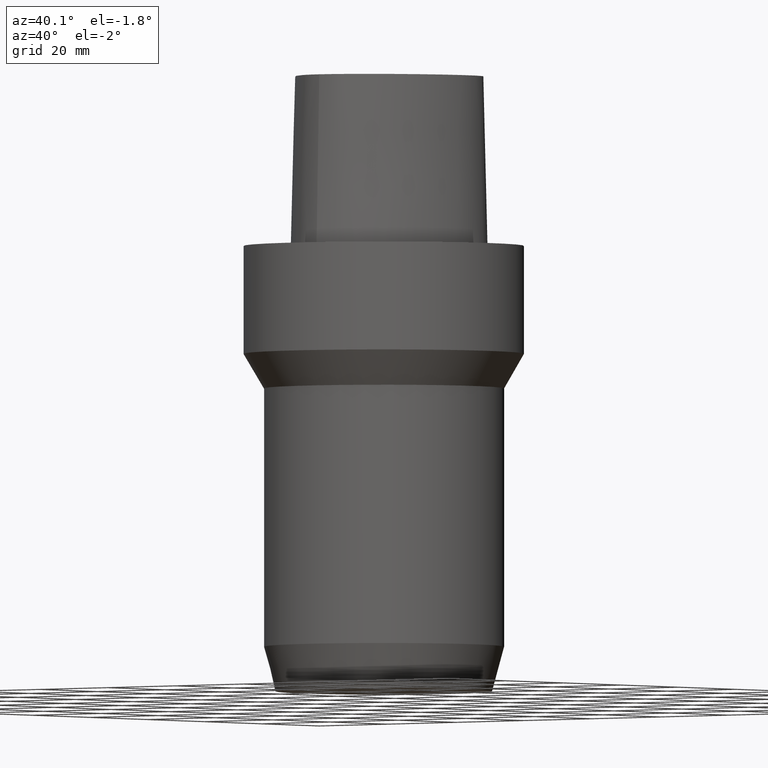
[diagram: clean part render]
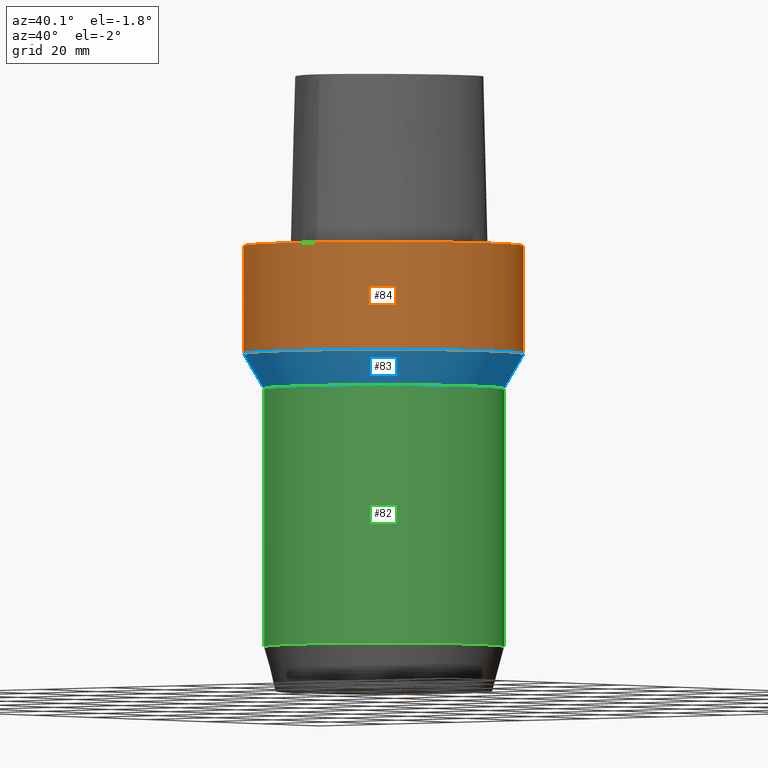
[diagram: same view with three faces highlighted in distinct colors, each labeled with its STEP entity id]
A machine part, auxiliary view with three faces highlighted in distinct colors.
Their STEP definitions:

[orange] entity #84 — the highlighted cylindrical surface (bore or boss wall) has radius 31.4925 mm, axis along (0, 0, -1).
#84=ADVANCED_FACE('',(#108,#109),#110,.T.);
#108=FACE_BOUND('',#271,.T.);
#109=FACE_BOUND('',#272,.T.);
#110=CYLINDRICAL_SURFACE('',#273,31.4925);
#271=EDGE_LOOP('',(#319));
#272=EDGE_LOOP('',(#320));
#273=AXIS2_PLACEMENT_3D('',#321,#322,#323);
#319=ORIENTED_EDGE('',*,*,#332,.F.);
#320=ORIENTED_EDGE('',*,*,#336,.T.);
#321=CARTESIAN_POINT('',(7.41485725964031E-016,1.48297145192806E-015,-12.1093808676964));
#322=DIRECTION('',(6.12323399573677E-017,1.22464679914735E-016,-1.0));
#323=DIRECTION('',(-1.23259516440783E-032,1.0,1.22464679914735E-016));
#332=EDGE_CURVE('',#350,#350,#351,.T.);
#336=EDGE_CURVE('',#358,#358,#359,.T.);
#350=VERTEX_POINT('',#439);
#351=CIRCLE('',#440,31.4925);
#358=VERTEX_POINT('',#447);
#359=CIRCLE('',#448,31.4925);
#439=CARTESIAN_POINT('',(-3.88175032151136E-031,31.4925,3.8567189322148E-015));
#440=AXIS2_PLACEMENT_3D('',#455,#456,#457);
#447=CARTESIAN_POINT('',(1.48297145192806E-015,31.4925,-24.2187617353928));
#448=AXIS2_PLACEMENT_3D('',#467,#468,#469);
#455=CARTESIAN_POINT('',(0.0,0.0,0.0));
#456=DIRECTION('',(-6.12323399573677E-017,-1.22464679914735E-016,1.0));
#457=DIRECTION('',(-1.23259516440783E-032,1.0,1.22464679914735E-016));
#467=CARTESIAN_POINT('',(1.48297145192806E-015,2.96594290385612E-015,-24.2187617353928));
#468=DIRECTION('',(-6.12323399573677E-017,-1.22464679914735E-016,1.0));
#469=DIRECTION('',(-1.23259516440783E-032,1.0,1.22464679914735E-016));

[blue] entity #83 — the highlighted conical surface has half-angle 30 deg.
#83=ADVANCED_FACE('',(#105,#106),#107,.T.);
#105=FACE_BOUND('',#268,.T.);
#106=FACE_BOUND('',#269,.T.);
#107=CONICAL_SURFACE('',#270,29.24625,0.523598774696176);
#268=EDGE_LOOP('',(#314));
#269=EDGE_LOOP('',(#315));
#270=AXIS2_PLACEMENT_3D('',#316,#317,#318);
#314=ORIENTED_EDGE('',*,*,#336,.F.);
#315=ORIENTED_EDGE('',*,*,#335,.T.);
#316=CARTESIAN_POINT('',(1.72120316542297E-015,3.44240633084593E-015,-28.10938087));
#317=DIRECTION('',(-6.12323399573677E-017,-1.22464679914735E-016,1.0));
#318=DIRECTION('',(-1.23259516440783E-032,1.0,1.22464679914735E-016));
#335=EDGE_CURVE('',#356,#356,#357,.T.);
#336=EDGE_CURVE('',#358,#358,#359,.T.);
#356=VERTEX_POINT('',#445);
#357=CIRCLE('',#446,27.0);
#358=VERTEX_POINT('',#447);
#359=CIRCLE('',#448,31.4925);
#445=CARTESIAN_POINT('',(1.95943487891787E-015,27.0,-32.0000000046072));
#446=AXIS2_PLACEMENT_3D('',#464,#465,#466);
#447=CARTESIAN_POINT('',(1.48297145192806E-015,31.4925,-24.2187617353928));
#448=AXIS2_PLACEMENT_3D('',#467,#468,#469);
#464=CARTESIAN_POINT('',(1.95943487891787E-015,3.91886975783574E-015,-32.0000000046072));
#465=DIRECTION('',(-6.12323399573677E-017,-1.22464679914735E-016,1.0));
#466=DIRECTION('',(-1.23259516440783E-032,1.0,1.22464679914735E-016));
#467=CARTESIAN_POINT('',(1.48297145192806E-015,2.96594290385612E-015,-24.2187617353928));
#468=DIRECTION('',(-6.12323399573677E-017,-1.22464679914735E-016,1.0));
#469=DIRECTION('',(-1.23259516440783E-032,1.0,1.22464679914735E-016));

[green] entity #82 — the highlighted cylindrical surface (bore or boss wall) has radius 27 mm, axis along (0, 0, -1).
#82=ADVANCED_FACE('',(#102,#103),#104,.T.);
#102=FACE_BOUND('',#265,.T.);
#103=FACE_BOUND('',#266,.T.);
#104=CYLINDRICAL_SURFACE('',#267,27.0);
#265=EDGE_LOOP('',(#309));
#266=EDGE_LOOP('',(#310));
#267=AXIS2_PLACEMENT_3D('',#311,#312,#313);
#309=ORIENTED_EDGE('',*,*,#335,.F.);
#310=ORIENTED_EDGE('',*,*,#334,.T.);
#311=CARTESIAN_POINT('',(3.73517273687244E-015,7.47034547374488E-015,-60.9999999913936));
#312=DIRECTION('',(6.12323399573677E-017,1.22464679914735E-016,-1.0));
#313=DIRECTION('',(-1.23259516440783E-032,1.0,1.22464679914735E-016));
#334=EDGE_CURVE('',#354,#354,#355,.T.);
#335=EDGE_CURVE('',#356,#356,#357,.T.);
#354=VERTEX_POINT('',#443);
#355=CIRCLE('',#444,27.0);
#356=VERTEX_POINT('',#445);
#357=CIRCLE('',#446,27.0);
#443=CARTESIAN_POINT('',(5.51091059482701E-015,27.0,-89.9999999781801));
#444=AXIS2_PLACEMENT_3D('',#461,#462,#463);
#445=CARTESIAN_POINT('',(1.95943487891787E-015,27.0,-32.0000000046072));
#446=AXIS2_PLACEMENT_3D('',#464,#465,#466);
#461=CARTESIAN_POINT('',(5.51091059482701E-015,1.1021821189654E-014,-89.9999999781801));
#462=DIRECTION('',(-6.12323399573677E-017,-1.22464679914735E-016,1.0));
#463=DIRECTION('',(-1.23259516440783E-032,1.0,1.22464679914735E-016));
#464=CARTESIAN_POINT('',(1.95943487891787E-015,3.91886975783574E-015,-32.0000000046072));
#465=DIRECTION('',(-6.12323399573677E-017,-1.22464679914735E-016,1.0));
#466=DIRECTION('',(-1.23259516440783E-032,1.0,1.22464679914735E-016));